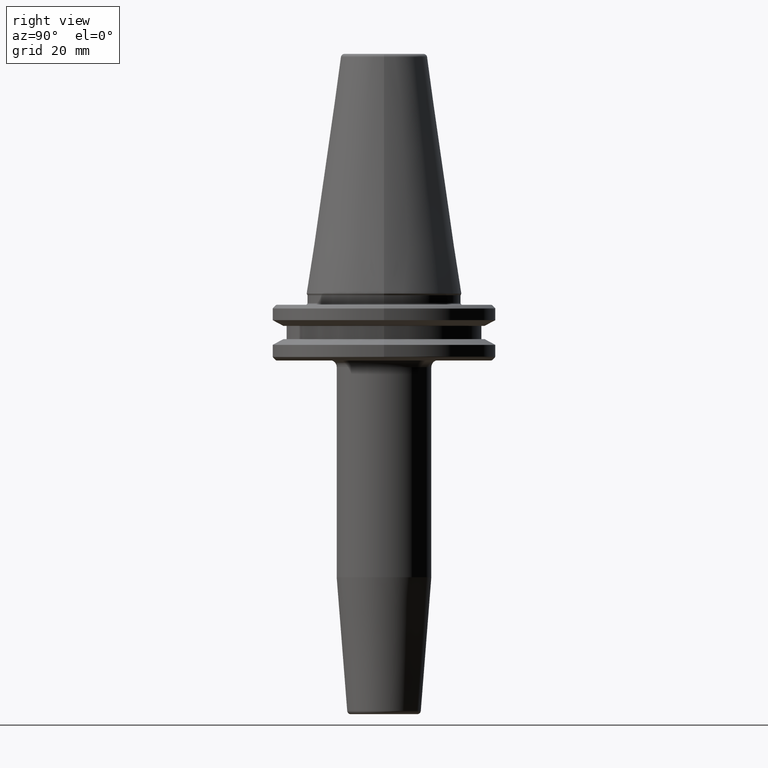
[diagram: clean part render]
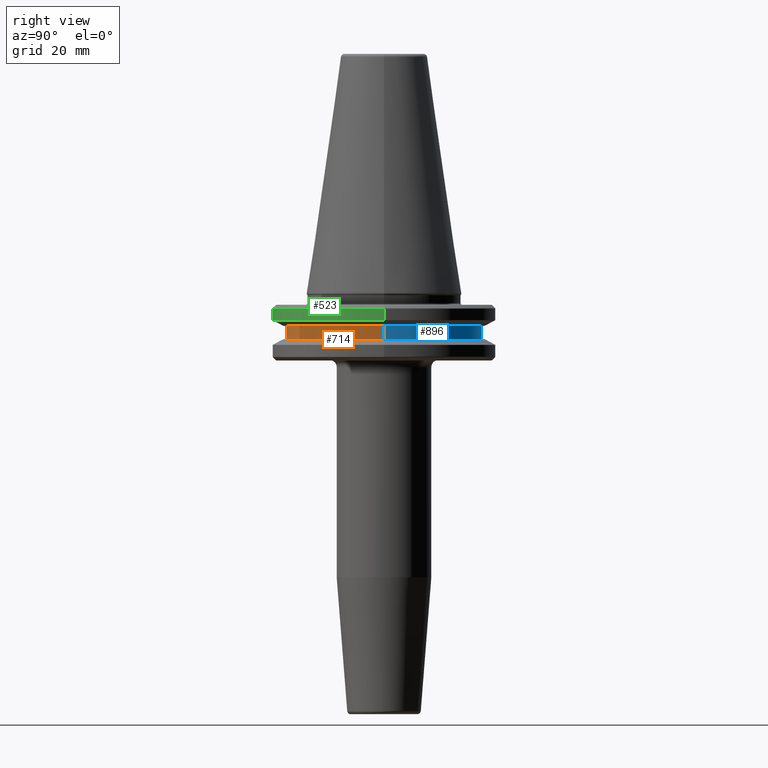
[diagram: same view with three faces highlighted in distinct colors, each labeled with its STEP entity id]
A machine part, right view with three faces highlighted in distinct colors.
Their STEP definitions:

[orange] entity #714 — the highlighted cylindrical surface (partial cylindrical patch) has radius 28 mm, axis along (-0, -0, 1).
#57 = DIRECTION ( 'NONE',  ( -0.0000000000000000000, -0.0000000000000000000, 1.000000000000000000 ) ) ;
#64 = VECTOR ( 'NONE', #313, 1000.000000000000000 ) ;
#103 = CARTESIAN_POINT ( 'NONE',  ( 28.00000000000000000, 0.0000000000000000000, 113.5216080541959500 ) ) ;
#138 = AXIS2_PLACEMENT_3D ( 'NONE', #640, #57, #744 ) ;
#210 = VERTEX_POINT ( 'NONE', #1061 ) ;
#313 = DIRECTION ( 'NONE',  ( -0.0000000000000000000, -0.0000000000000000000, 1.000000000000000000 ) ) ;
#402 = EDGE_CURVE ( 'NONE', #210, #979, #1103, .T. ) ;
#532 = CARTESIAN_POINT ( 'NONE',  ( 0.0000000000000000000, 0.0000000000000000000, -13.00000000000001100 ) ) ;
#541 = CARTESIAN_POINT ( 'NONE',  ( 0.0000000000000000000, 0.0000000000000000000, 113.5216080541959500 ) ) ;
#548 = ORIENTED_EDGE ( 'NONE', *, *, #765, .F. ) ;
#591 = AXIS2_PLACEMENT_3D ( 'NONE', #541, #738, #929 ) ;
#622 = CARTESIAN_POINT ( 'NONE',  ( -28.00000000000000000, 3.429011037612589300E-015, -13.00000000000001100 ) ) ;
#628 = DIRECTION ( 'NONE',  ( 1.000000000000000000, 0.0000000000000000000, 0.0000000000000000000 ) ) ;
#640 = CARTESIAN_POINT ( 'NONE',  ( 0.0000000000000000000, 0.0000000000000000000, -9.199999999999999300 ) ) ;
#673 = CYLINDRICAL_SURFACE ( 'NONE', #591, 28.00000000000000000 ) ;
#711 = FACE_OUTER_BOUND ( 'NONE', #943, .T. ) ;
#714 = ADVANCED_FACE ( 'NONE', ( #711 ), #673, .T. ) ;
#738 = DIRECTION ( 'NONE',  ( -0.0000000000000000000, -0.0000000000000000000, 1.000000000000000000 ) ) ;
#744 = DIRECTION ( 'NONE',  ( 1.000000000000000000, 0.0000000000000000000, 0.0000000000000000000 ) ) ;
#751 = ORIENTED_EDGE ( 'NONE', *, *, #402, .T. ) ;
#765 = EDGE_CURVE ( 'NONE', #1225, #1026, #1196, .T. ) ;
#847 = DIRECTION ( 'NONE',  ( -0.0000000000000000000, -0.0000000000000000000, 1.000000000000000000 ) ) ;
#871 = ORIENTED_EDGE ( 'NONE', *, *, #1230, .T. ) ;
#892 = EDGE_CURVE ( 'NONE', #1026, #979, #1013, .T. ) ;
#929 = DIRECTION ( 'NONE',  ( 1.000000000000000000, 0.0000000000000000000, 0.0000000000000000000 ) ) ;
#931 = CARTESIAN_POINT ( 'NONE',  ( -28.00000000000000000, 3.429011037612589300E-015, 113.5216080541959500 ) ) ;
#940 = VECTOR ( 'NONE', #847, 1000.000000000000000 ) ;
#943 = EDGE_LOOP ( 'NONE', ( #548, #871, #751, #1121 ) ) ;
#946 = CARTESIAN_POINT ( 'NONE',  ( 28.00000000000000000, 0.0000000000000000000, -9.199999999999999300 ) ) ;
#979 = VERTEX_POINT ( 'NONE', #946 ) ;
#1013 = CIRCLE ( 'NONE', #138, 28.00000000000000000 ) ;
#1026 = VERTEX_POINT ( 'NONE', #1034 ) ;
#1034 = CARTESIAN_POINT ( 'NONE',  ( -28.00000000000000000, 3.429011037612589300E-015, -9.199999999999999300 ) ) ;
#1061 = CARTESIAN_POINT ( 'NONE',  ( 28.00000000000000000, 0.0000000000000000000, -13.00000000000001100 ) ) ;
#1085 = AXIS2_PLACEMENT_3D ( 'NONE', #532, #1208, #628 ) ;
#1103 = LINE ( 'NONE', #103, #64 ) ;
#1121 = ORIENTED_EDGE ( 'NONE', *, *, #892, .F. ) ;
#1196 = LINE ( 'NONE', #931, #940 ) ;
#1208 = DIRECTION ( 'NONE',  ( -0.0000000000000000000, -0.0000000000000000000, 1.000000000000000000 ) ) ;
#1225 = VERTEX_POINT ( 'NONE', #622 ) ;
#1230 = EDGE_CURVE ( 'NONE', #1225, #210, #1252, .T. ) ;
#1252 = CIRCLE ( 'NONE', #1085, 28.00000000000000000 ) ;

[blue] entity #896 — the highlighted cylindrical surface (partial cylindrical patch) has radius 28 mm, axis along (-0, -0, 1).
#64 = VECTOR ( 'NONE', #313, 1000.000000000000000 ) ;
#103 = CARTESIAN_POINT ( 'NONE',  ( 28.00000000000000000, 0.0000000000000000000, 113.5216080541959500 ) ) ;
#106 = AXIS2_PLACEMENT_3D ( 'NONE', #1024, #1122, #355 ) ;
#210 = VERTEX_POINT ( 'NONE', #1061 ) ;
#229 = DIRECTION ( 'NONE',  ( -0.0000000000000000000, -0.0000000000000000000, 1.000000000000000000 ) ) ;
#240 = CARTESIAN_POINT ( 'NONE',  ( 0.0000000000000000000, 0.0000000000000000000, -13.00000000000001100 ) ) ;
#313 = DIRECTION ( 'NONE',  ( -0.0000000000000000000, -0.0000000000000000000, 1.000000000000000000 ) ) ;
#330 = DIRECTION ( 'NONE',  ( 1.000000000000000000, 0.0000000000000000000, 0.0000000000000000000 ) ) ;
#341 = EDGE_CURVE ( 'NONE', #979, #1026, #1157, .T. ) ;
#355 = DIRECTION ( 'NONE',  ( 1.000000000000000000, 0.0000000000000000000, 0.0000000000000000000 ) ) ;
#402 = EDGE_CURVE ( 'NONE', #210, #979, #1103, .T. ) ;
#437 = ORIENTED_EDGE ( 'NONE', *, *, #341, .F. ) ;
#509 = CYLINDRICAL_SURFACE ( 'NONE', #106, 28.00000000000000000 ) ;
#573 = EDGE_LOOP ( 'NONE', ( #597, #763, #437, #722 ) ) ;
#597 = ORIENTED_EDGE ( 'NONE', *, *, #1190, .T. ) ;
#600 = CARTESIAN_POINT ( 'NONE',  ( 0.0000000000000000000, 0.0000000000000000000, -9.199999999999999300 ) ) ;
#622 = CARTESIAN_POINT ( 'NONE',  ( -28.00000000000000000, 3.429011037612589300E-015, -13.00000000000001100 ) ) ;
#722 = ORIENTED_EDGE ( 'NONE', *, *, #402, .F. ) ;
#725 = AXIS2_PLACEMENT_3D ( 'NONE', #600, #229, #1081 ) ;
#763 = ORIENTED_EDGE ( 'NONE', *, *, #765, .T. ) ;
#765 = EDGE_CURVE ( 'NONE', #1225, #1026, #1196, .T. ) ;
#803 = CIRCLE ( 'NONE', #1152, 28.00000000000000000 ) ;
#847 = DIRECTION ( 'NONE',  ( -0.0000000000000000000, -0.0000000000000000000, 1.000000000000000000 ) ) ;
#896 = ADVANCED_FACE ( 'NONE', ( #1033 ), #509, .T. ) ;
#909 = DIRECTION ( 'NONE',  ( -0.0000000000000000000, -0.0000000000000000000, 1.000000000000000000 ) ) ;
#931 = CARTESIAN_POINT ( 'NONE',  ( -28.00000000000000000, 3.429011037612589300E-015, 113.5216080541959500 ) ) ;
#940 = VECTOR ( 'NONE', #847, 1000.000000000000000 ) ;
#946 = CARTESIAN_POINT ( 'NONE',  ( 28.00000000000000000, 0.0000000000000000000, -9.199999999999999300 ) ) ;
#979 = VERTEX_POINT ( 'NONE', #946 ) ;
#1024 = CARTESIAN_POINT ( 'NONE',  ( 0.0000000000000000000, 0.0000000000000000000, 113.5216080541959500 ) ) ;
#1026 = VERTEX_POINT ( 'NONE', #1034 ) ;
#1033 = FACE_OUTER_BOUND ( 'NONE', #573, .T. ) ;
#1034 = CARTESIAN_POINT ( 'NONE',  ( -28.00000000000000000, 3.429011037612589300E-015, -9.199999999999999300 ) ) ;
#1061 = CARTESIAN_POINT ( 'NONE',  ( 28.00000000000000000, 0.0000000000000000000, -13.00000000000001100 ) ) ;
#1081 = DIRECTION ( 'NONE',  ( 1.000000000000000000, 0.0000000000000000000, 0.0000000000000000000 ) ) ;
#1103 = LINE ( 'NONE', #103, #64 ) ;
#1122 = DIRECTION ( 'NONE',  ( -0.0000000000000000000, -0.0000000000000000000, 1.000000000000000000 ) ) ;
#1152 = AXIS2_PLACEMENT_3D ( 'NONE', #240, #909, #330 ) ;
#1157 = CIRCLE ( 'NONE', #725, 28.00000000000000000 ) ;
#1190 = EDGE_CURVE ( 'NONE', #210, #1225, #803, .T. ) ;
#1196 = LINE ( 'NONE', #931, #940 ) ;
#1225 = VERTEX_POINT ( 'NONE', #622 ) ;

[green] entity #523 — the highlighted cylindrical surface (partial cylindrical patch) has radius 31.75 mm, axis along (-0, -0, 1).
#12 = CARTESIAN_POINT ( 'NONE',  ( -31.75000000000000000, 3.888253587292846500E-015, -7.578163357943284800 ) ) ;
#41 = LINE ( 'NONE', #418, #777 ) ;
#65 = EDGE_CURVE ( 'NONE', #504, #1125, #528, .T. ) ;
#98 = CYLINDRICAL_SURFACE ( 'NONE', #346, 31.75000000000000000 ) ;
#108 = DIRECTION ( 'NONE',  ( -0.0000000000000000000, -0.0000000000000000000, 1.000000000000000000 ) ) ;
#113 = CARTESIAN_POINT ( 'NONE',  ( 0.0000000000000000000, 0.0000000000000000000, -4.365685424949250000 ) ) ;
#114 = CARTESIAN_POINT ( 'NONE',  ( 0.0000000000000000000, 0.0000000000000000000, -7.578163357943284800 ) ) ;
#185 = AXIS2_PLACEMENT_3D ( 'NONE', #114, #208, #981 ) ;
#201 = DIRECTION ( 'NONE',  ( 1.000000000000000000, 0.0000000000000000000, 0.0000000000000000000 ) ) ;
#208 = DIRECTION ( 'NONE',  ( -0.0000000000000000000, -0.0000000000000000000, 1.000000000000000000 ) ) ;
#219 = DIRECTION ( 'NONE',  ( 1.000000000000000000, 0.0000000000000000000, 0.0000000000000000000 ) ) ;
#243 = ORIENTED_EDGE ( 'NONE', *, *, #1123, .F. ) ;
#286 = ORIENTED_EDGE ( 'NONE', *, *, #552, .T. ) ;
#346 = AXIS2_PLACEMENT_3D ( 'NONE', #1169, #108, #201 ) ;
#376 = ORIENTED_EDGE ( 'NONE', *, *, #620, .F. ) ;
#395 = ORIENTED_EDGE ( 'NONE', *, *, #65, .T. ) ;
#396 = FACE_OUTER_BOUND ( 'NONE', #515, .T. ) ;
#409 = CIRCLE ( 'NONE', #571, 31.75000000000000000 ) ;
#416 = VERTEX_POINT ( 'NONE', #12 ) ;
#418 = CARTESIAN_POINT ( 'NONE',  ( -31.75000000000000000, 3.888253587292846500E-015, 113.5216080541959500 ) ) ;
#504 = VERTEX_POINT ( 'NONE', #728 ) ;
#515 = EDGE_LOOP ( 'NONE', ( #376, #286, #395, #243 ) ) ;
#523 = ADVANCED_FACE ( 'NONE', ( #396 ), #98, .T. ) ;
#528 = LINE ( 'NONE', #579, #1005 ) ;
#552 = EDGE_CURVE ( 'NONE', #416, #504, #872, .T. ) ;
#571 = AXIS2_PLACEMENT_3D ( 'NONE', #113, #793, #219 ) ;
#579 = CARTESIAN_POINT ( 'NONE',  ( 31.75000000000000000, 0.0000000000000000000, 113.5216080541959500 ) ) ;
#604 = VERTEX_POINT ( 'NONE', #1094 ) ;
#620 = EDGE_CURVE ( 'NONE', #416, #604, #41, .T. ) ;
#728 = CARTESIAN_POINT ( 'NONE',  ( 31.75000000000000000, 0.0000000000000000000, -7.578163357943284800 ) ) ;
#777 = VECTOR ( 'NONE', #1054, 1000.000000000000000 ) ;
#793 = DIRECTION ( 'NONE',  ( -0.0000000000000000000, -0.0000000000000000000, 1.000000000000000000 ) ) ;
#872 = CIRCLE ( 'NONE', #185, 31.75000000000000000 ) ;
#964 = DIRECTION ( 'NONE',  ( -0.0000000000000000000, -0.0000000000000000000, 1.000000000000000000 ) ) ;
#981 = DIRECTION ( 'NONE',  ( 1.000000000000000000, 0.0000000000000000000, 0.0000000000000000000 ) ) ;
#1005 = VECTOR ( 'NONE', #964, 1000.000000000000000 ) ;
#1054 = DIRECTION ( 'NONE',  ( -0.0000000000000000000, -0.0000000000000000000, 1.000000000000000000 ) ) ;
#1094 = CARTESIAN_POINT ( 'NONE',  ( -31.75000000000000000, 3.888253587292846500E-015, -4.365685424949250000 ) ) ;
#1123 = EDGE_CURVE ( 'NONE', #604, #1125, #409, .T. ) ;
#1125 = VERTEX_POINT ( 'NONE', #1181 ) ;
#1169 = CARTESIAN_POINT ( 'NONE',  ( 0.0000000000000000000, 0.0000000000000000000, 113.5216080541959500 ) ) ;
#1181 = CARTESIAN_POINT ( 'NONE',  ( 31.75000000000000000, 0.0000000000000000000, -4.365685424949250000 ) ) ;